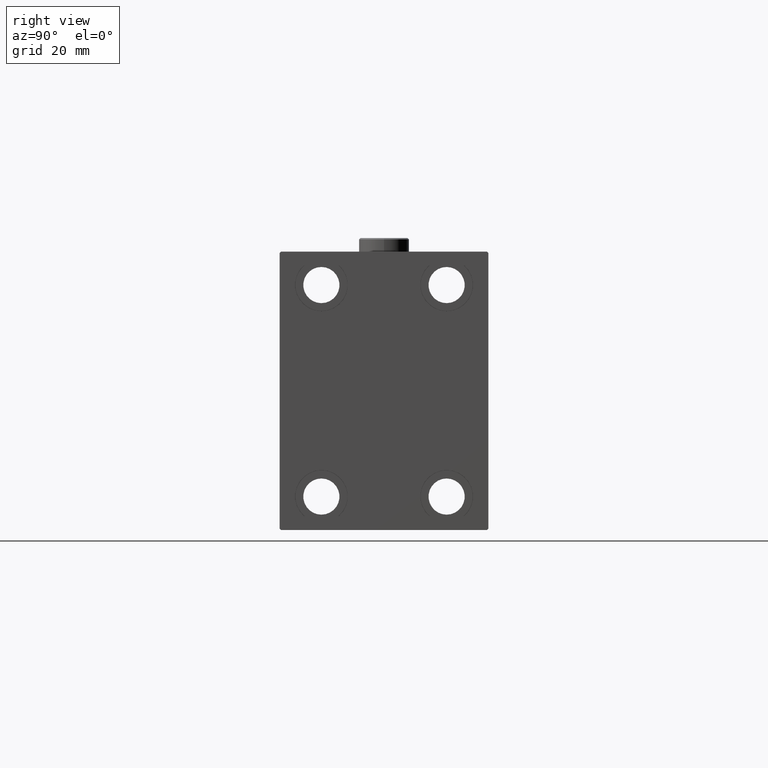
[diagram: clean part render]
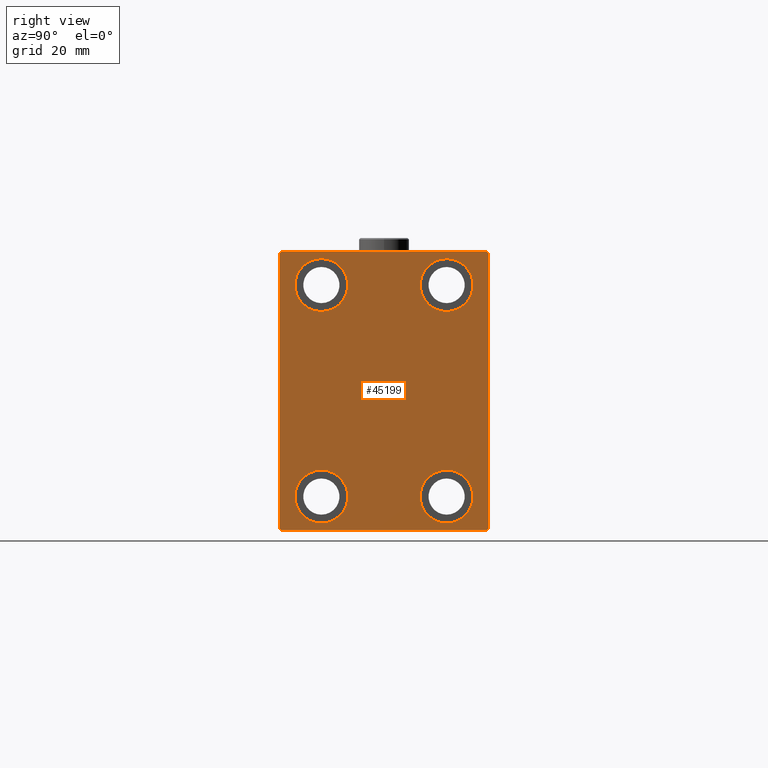
[diagram: same view with one face highlighted and labeled with its STEP entity id]
A machine part, right view. The second image highlights one B-rep face of the part: STEP entity #45199.
In plain terms, the highlighted planar face has unit normal (1, 0, 0).
Its self-contained STEP definition (entity closure, byte-faithful):
#604 = DIRECTION ( 'NONE',  ( -0.000000000000000000, -0.7071067811865426878, 0.7071067811865524577 ) ) ;
#787 = EDGE_CURVE ( 'NONE', #18760, #30525, #10651, .T. ) ;
#841 = ORIENTED_EDGE ( 'NONE', *, *, #10173, .T. ) ;
#1730 = VERTEX_POINT ( 'NONE', #27893 ) ;
#3864 = VERTEX_POINT ( 'NONE', #7193 ) ;
#4046 = CARTESIAN_POINT ( 'NONE',  ( 133.0000000000000000, 37.49999999999999289, 50.00000000000000711 ) ) ;
#4531 = ORIENTED_EDGE ( 'NONE', *, *, #21821, .T. ) ;
#4557 = CARTESIAN_POINT ( 'NONE',  ( 133.0000000000000000, 22.49999999999999645, -28.49999999999998934 ) ) ;
#6116 = ORIENTED_EDGE ( 'NONE', *, *, #40117, .T. ) ;
#6413 = AXIS2_PLACEMENT_3D ( 'NONE', #31204, #24139, #39466 ) ;
#6499 = ORIENTED_EDGE ( 'NONE', *, *, #43165, .T. ) ;
#6748 = VERTEX_POINT ( 'NONE', #10020 ) ;
#7193 = CARTESIAN_POINT ( 'NONE',  ( 133.0000000000000000, 37.49999999999999289, 49.49999999999997158 ) ) ;
#7727 = DIRECTION ( 'NONE',  ( 0.000000000000000000, 0.000000000000000000, -1.000000000000000000 ) ) ;
#7777 = DIRECTION ( 'NONE',  ( 0.000000000000000000, 0.000000000000000000, 1.000000000000000000 ) ) ;
#7967 = FACE_BOUND ( 'NONE', #32895, .T. ) ;
#8518 = VERTEX_POINT ( 'NONE', #47055 ) ;
#10020 = CARTESIAN_POINT ( 'NONE',  ( 133.0000000000000000, -22.49999999999999645, 28.49999999999998934 ) ) ;
#10072 = DIRECTION ( 'NONE',  ( -0.000000000000000000, 0.7071067811865474617, 0.7071067811865474617 ) ) ;
#10173 = EDGE_CURVE ( 'NONE', #47558, #36650, #31495, .T. ) ;
#10651 = CIRCLE ( 'NONE', #15316, 9.500000000000001776 ) ;
#10903 = DIRECTION ( 'NONE',  ( -1.000000000000000000, -0.000000000000000000, -0.000000000000000000 ) ) ;
#10931 = AXIS2_PLACEMENT_3D ( 'NONE', #15476, #41501, #15715 ) ;
#11540 = DIRECTION ( 'NONE',  ( -0.000000000000000000, 0.7071067811865474617, -0.7071067811865474617 ) ) ;
#11686 = DIRECTION ( 'NONE',  ( -1.000000000000000000, -0.000000000000000000, -0.000000000000000000 ) ) ;
#11789 = CARTESIAN_POINT ( 'NONE',  ( 133.0000000000000000, -22.50000000000000711, -28.49999999999998934 ) ) ;
#11835 = CARTESIAN_POINT ( 'NONE',  ( 133.0000000000000000, 22.49999999999999645, -37.99999999999999289 ) ) ;
#12220 = AXIS2_PLACEMENT_3D ( 'NONE', #36761, #11686, #7777 ) ;
#12422 = VECTOR ( 'NONE', #37754, 1000.000000000000000 ) ;
#12617 = EDGE_CURVE ( 'NONE', #21143, #23991, #15588, .T. ) ;
#13294 = EDGE_CURVE ( 'NONE', #36650, #3864, #44595, .T. ) ;
#15316 = AXIS2_PLACEMENT_3D ( 'NONE', #41060, #10903, #40584 ) ;
#15476 = CARTESIAN_POINT ( 'NONE',  ( 133.0000000000000000, 22.50000000000000355, 37.99999999999999289 ) ) ;
#15588 = CIRCLE ( 'NONE', #35029, 9.500000000000001776 ) ;
#15632 = EDGE_CURVE ( 'NONE', #16565, #43106, #21527, .T. ) ;
#15715 = DIRECTION ( 'NONE',  ( 0.000000000000000000, 0.000000000000000000, 1.000000000000000000 ) ) ;
#15745 = ORIENTED_EDGE ( 'NONE', *, *, #36467, .T. ) ;
#15836 = CIRCLE ( 'NONE', #22820, 9.500000000000001776 ) ;
#16113 = CARTESIAN_POINT ( 'NONE',  ( 133.0000000000000000, -22.50000000000000711, -47.49999999999999289 ) ) ;
#16348 = AXIS2_PLACEMENT_3D ( 'NONE', #18701, #23294, #7727 ) ;
#16565 = VERTEX_POINT ( 'NONE', #18423 ) ;
#16631 = ORIENTED_EDGE ( 'NONE', *, *, #12617, .T. ) ;
#16774 = VECTOR ( 'NONE', #26747, 1000.000000000000000 ) ;
#16956 = VERTEX_POINT ( 'NONE', #22914 ) ;
#17941 = VECTOR ( 'NONE', #33399, 1000.000000000000000 ) ;
#18423 = CARTESIAN_POINT ( 'NONE',  ( 133.0000000000000000, -37.50000000000000711, -49.50000000000003553 ) ) ;
#18430 = ORIENTED_EDGE ( 'NONE', *, *, #24314, .T. ) ;
#18478 = CARTESIAN_POINT ( 'NONE',  ( 133.0000000000000000, -22.49999999999999645, 37.99999999999999289 ) ) ;
#18701 = CARTESIAN_POINT ( 'NONE',  ( 133.0000000000000000, 0.000000000000000000, 0.000000000000000000 ) ) ;
#18760 = VERTEX_POINT ( 'NONE', #11789 ) ;
#18866 = EDGE_LOOP ( 'NONE', ( #18430, #33251 ) ) ;
#18981 = CARTESIAN_POINT ( 'NONE',  ( 133.0000000000000000, -37.50000000000000711, 49.99999999999999289 ) ) ;
#19041 = LINE ( 'NONE', #45078, #12422 ) ;
#20072 = ORIENTED_EDGE ( 'NONE', *, *, #15632, .T. ) ;
#20750 = LINE ( 'NONE', #34877, #36492 ) ;
#21143 = VERTEX_POINT ( 'NONE', #4557 ) ;
#21527 = LINE ( 'NONE', #26136, #32803 ) ;
#21821 = EDGE_CURVE ( 'NONE', #1730, #6748, #40612, .T. ) ;
#22315 = DIRECTION ( 'NONE',  ( 0.000000000000000000, -1.000000000000000000, -1.850371707708594316E-16 ) ) ;
#22445 = VERTEX_POINT ( 'NONE', #32460 ) ;
#22820 = AXIS2_PLACEMENT_3D ( 'NONE', #25340, #47030, #25105 ) ;
#22822 = FACE_BOUND ( 'NONE', #36117, .T. ) ;
#22914 = CARTESIAN_POINT ( 'NONE',  ( 133.0000000000000000, 22.50000000000000355, 47.49999999999999289 ) ) ;
#23177 = CIRCLE ( 'NONE', #29402, 9.500000000000001776 ) ;
#23270 = ORIENTED_EDGE ( 'NONE', *, *, #45545, .T. ) ;
#23294 = DIRECTION ( 'NONE',  ( 1.000000000000000000, 0.000000000000000000, 0.000000000000000000 ) ) ;
#23305 = CARTESIAN_POINT ( 'NONE',  ( 133.0000000000000000, 22.50000000000000355, 28.49999999999998934 ) ) ;
#23708 = ORIENTED_EDGE ( 'NONE', *, *, #33211, .T. ) ;
#23840 = VERTEX_POINT ( 'NONE', #23305 ) ;
#23991 = VERTEX_POINT ( 'NONE', #39834 ) ;
#24139 = DIRECTION ( 'NONE',  ( -1.000000000000000000, -0.000000000000000000, -0.000000000000000000 ) ) ;
#24314 = EDGE_CURVE ( 'NONE', #30525, #18760, #15836, .T. ) ;
#24764 = DIRECTION ( 'NONE',  ( 0.000000000000000000, 0.000000000000000000, 1.000000000000000000 ) ) ;
#25105 = DIRECTION ( 'NONE',  ( 0.000000000000000000, 0.000000000000000000, 1.000000000000000000 ) ) ;
#25340 = CARTESIAN_POINT ( 'NONE',  ( 133.0000000000000000, -22.50000000000000711, -37.99999999999999289 ) ) ;
#25690 = VECTOR ( 'NONE', #604, 1000.000000000000000 ) ;
#25995 = FACE_BOUND ( 'NONE', #43884, .T. ) ;
#26136 = CARTESIAN_POINT ( 'NONE',  ( 133.0000000000000000, -43.50000000000002132, -43.50000000000002132 ) ) ;
#26228 = PLANE ( 'NONE',  #16348 ) ;
#26418 = CARTESIAN_POINT ( 'NONE',  ( 133.0000000000000000, 43.50000000000024158, 43.49999999999963762 ) ) ;
#26514 = LINE ( 'NONE', #18981, #16774 ) ;
#26670 = DIRECTION ( 'NONE',  ( -1.000000000000000000, -0.000000000000000000, -0.000000000000000000 ) ) ;
#26747 = DIRECTION ( 'NONE',  ( 0.000000000000000000, 0.000000000000000000, -1.000000000000000000 ) ) ;
#26914 = CARTESIAN_POINT ( 'NONE',  ( 133.0000000000000000, 36.99999999999997868, -50.00000000000000000 ) ) ;
#26973 = CIRCLE ( 'NONE', #12220, 9.500000000000001776 ) ;
#27610 = CARTESIAN_POINT ( 'NONE',  ( 133.0000000000000000, 43.49999999999998579, -43.49999999999998579 ) ) ;
#27830 = AXIS2_PLACEMENT_3D ( 'NONE', #18478, #33316, #48191 ) ;
#27893 = CARTESIAN_POINT ( 'NONE',  ( 133.0000000000000000, -22.49999999999999645, 47.49999999999999289 ) ) ;
#28897 = CARTESIAN_POINT ( 'NONE',  ( 133.0000000000000000, 22.49999999999999645, -37.99999999999999289 ) ) ;
#28924 = VERTEX_POINT ( 'NONE', #31635 ) ;
#29042 = EDGE_CURVE ( 'NONE', #28924, #16565, #26514, .T. ) ;
#29107 = ORIENTED_EDGE ( 'NONE', *, *, #13294, .T. ) ;
#29259 = CARTESIAN_POINT ( 'NONE',  ( 133.0000000000000000, 37.50000000000000711, -50.00000000000000000 ) ) ;
#29402 = AXIS2_PLACEMENT_3D ( 'NONE', #11835, #26670, #41995 ) ;
#29577 = LINE ( 'NONE', #26418, #25690 ) ;
#30109 = FACE_OUTER_BOUND ( 'NONE', #32434, .T. ) ;
#30525 = VERTEX_POINT ( 'NONE', #16113 ) ;
#31204 = CARTESIAN_POINT ( 'NONE',  ( 133.0000000000000000, -22.49999999999999645, 37.99999999999999289 ) ) ;
#31495 = LINE ( 'NONE', #27610, #38783 ) ;
#31635 = CARTESIAN_POINT ( 'NONE',  ( 133.0000000000000000, -37.50000000000000711, 49.49999999999996447 ) ) ;
#32066 = DIRECTION ( 'NONE',  ( -1.000000000000000000, -0.000000000000000000, -0.000000000000000000 ) ) ;
#32434 = EDGE_LOOP ( 'NONE', ( #38797, #6499, #46596, #20072, #38728, #841, #29107, #37331 ) ) ;
#32460 = CARTESIAN_POINT ( 'NONE',  ( 133.0000000000000000, 36.99999999999996447, 50.00000000000000711 ) ) ;
#32803 = VECTOR ( 'NONE', #11540, 1000.000000000000114 ) ;
#32895 = EDGE_LOOP ( 'NONE', ( #15745, #16631 ) ) ;
#33211 = EDGE_CURVE ( 'NONE', #23840, #16956, #26973, .T. ) ;
#33251 = ORIENTED_EDGE ( 'NONE', *, *, #787, .T. ) ;
#33316 = DIRECTION ( 'NONE',  ( -1.000000000000000000, -0.000000000000000000, -0.000000000000000000 ) ) ;
#33399 = DIRECTION ( 'NONE',  ( 0.000000000000000000, -1.387778780781445676E-16, 1.000000000000000000 ) ) ;
#34397 = CARTESIAN_POINT ( 'NONE',  ( 133.0000000000000000, -37.00000000000003553, -50.00000000000000711 ) ) ;
#34877 = CARTESIAN_POINT ( 'NONE',  ( 133.0000000000000000, -43.49999999999998579, 43.49999999999998579 ) ) ;
#35029 = AXIS2_PLACEMENT_3D ( 'NONE', #28897, #32066, #24764 ) ;
#35592 = DIRECTION ( 'NONE',  ( 0.000000000000000000, -0.7071067811865474617, -0.7071067811865474617 ) ) ;
#36117 = EDGE_LOOP ( 'NONE', ( #6116, #4531 ) ) ;
#36467 = EDGE_CURVE ( 'NONE', #23991, #21143, #23177, .T. ) ;
#36492 = VECTOR ( 'NONE', #35592, 1000.000000000000114 ) ;
#36650 = VERTEX_POINT ( 'NONE', #43427 ) ;
#36761 = CARTESIAN_POINT ( 'NONE',  ( 133.0000000000000000, 22.50000000000000355, 37.99999999999999289 ) ) ;
#37331 = ORIENTED_EDGE ( 'NONE', *, *, #45571, .T. ) ;
#37754 = DIRECTION ( 'NONE',  ( 0.000000000000000000, 1.000000000000000000, 9.251858538542970348E-17 ) ) ;
#38521 = EDGE_CURVE ( 'NONE', #22445, #8518, #40816, .T. ) ;
#38714 = CIRCLE ( 'NONE', #27830, 9.500000000000001776 ) ;
#38728 = ORIENTED_EDGE ( 'NONE', *, *, #44192, .T. ) ;
#38783 = VECTOR ( 'NONE', #10072, 1000.000000000000114 ) ;
#38797 = ORIENTED_EDGE ( 'NONE', *, *, #38521, .T. ) ;
#39466 = DIRECTION ( 'NONE',  ( 0.000000000000000000, 0.000000000000000000, 1.000000000000000000 ) ) ;
#39834 = CARTESIAN_POINT ( 'NONE',  ( 133.0000000000000000, 22.49999999999999645, -47.49999999999999289 ) ) ;
#40117 = EDGE_CURVE ( 'NONE', #6748, #1730, #38714, .T. ) ;
#40584 = DIRECTION ( 'NONE',  ( 0.000000000000000000, 0.000000000000000000, 1.000000000000000000 ) ) ;
#40612 = CIRCLE ( 'NONE', #6413, 9.500000000000001776 ) ;
#40816 = LINE ( 'NONE', #4046, #46479 ) ;
#40836 = FACE_BOUND ( 'NONE', #18866, .T. ) ;
#41060 = CARTESIAN_POINT ( 'NONE',  ( 133.0000000000000000, -22.50000000000000711, -37.99999999999999289 ) ) ;
#41501 = DIRECTION ( 'NONE',  ( -1.000000000000000000, -0.000000000000000000, -0.000000000000000000 ) ) ;
#41995 = DIRECTION ( 'NONE',  ( 0.000000000000000000, 0.000000000000000000, 1.000000000000000000 ) ) ;
#43106 = VERTEX_POINT ( 'NONE', #34397 ) ;
#43165 = EDGE_CURVE ( 'NONE', #8518, #28924, #20750, .T. ) ;
#43427 = CARTESIAN_POINT ( 'NONE',  ( 133.0000000000000000, 37.50000000000000711, -49.49999999999997158 ) ) ;
#43884 = EDGE_LOOP ( 'NONE', ( #23708, #23270 ) ) ;
#44192 = EDGE_CURVE ( 'NONE', #43106, #47558, #19041, .T. ) ;
#44595 = LINE ( 'NONE', #29259, #17941 ) ;
#45078 = CARTESIAN_POINT ( 'NONE',  ( 133.0000000000000000, -37.50000000000000711, -50.00000000000000711 ) ) ;
#45199 = ADVANCED_FACE ( 'NONE', ( #7967, #22822, #25995, #40836, #30109 ), #26228, .T. ) ;
#45545 = EDGE_CURVE ( 'NONE', #16956, #23840, #46681, .T. ) ;
#45571 = EDGE_CURVE ( 'NONE', #3864, #22445, #29577, .T. ) ;
#46479 = VECTOR ( 'NONE', #22315, 1000.000000000000000 ) ;
#46596 = ORIENTED_EDGE ( 'NONE', *, *, #29042, .T. ) ;
#46681 = CIRCLE ( 'NONE', #10931, 9.500000000000001776 ) ;
#47030 = DIRECTION ( 'NONE',  ( -1.000000000000000000, -0.000000000000000000, -0.000000000000000000 ) ) ;
#47055 = CARTESIAN_POINT ( 'NONE',  ( 133.0000000000000000, -36.99999999999997868, 49.99999999999999289 ) ) ;
#47558 = VERTEX_POINT ( 'NONE', #26914 ) ;
#48191 = DIRECTION ( 'NONE',  ( 0.000000000000000000, 0.000000000000000000, 1.000000000000000000 ) ) ;